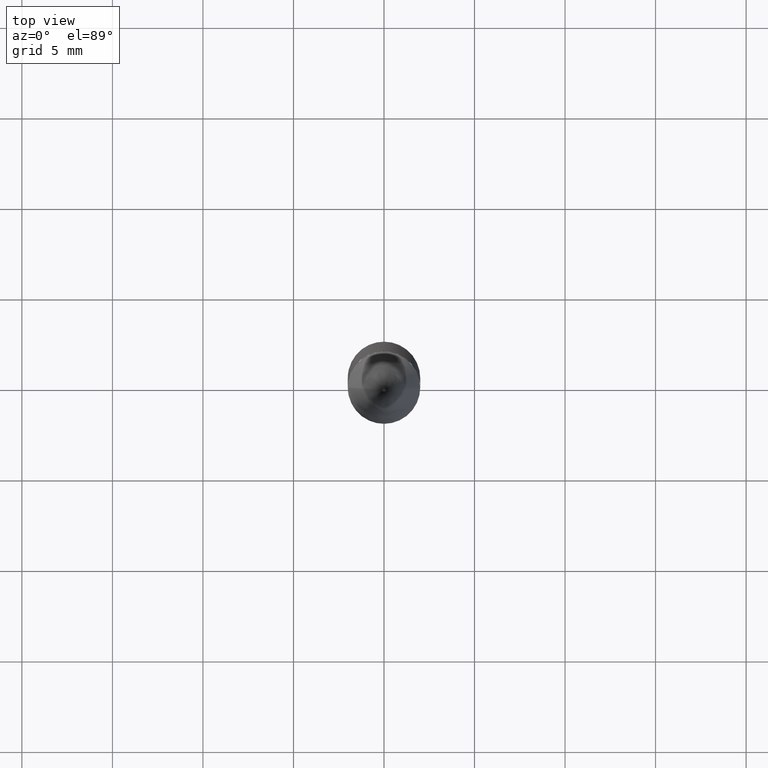
[diagram: clean part render]
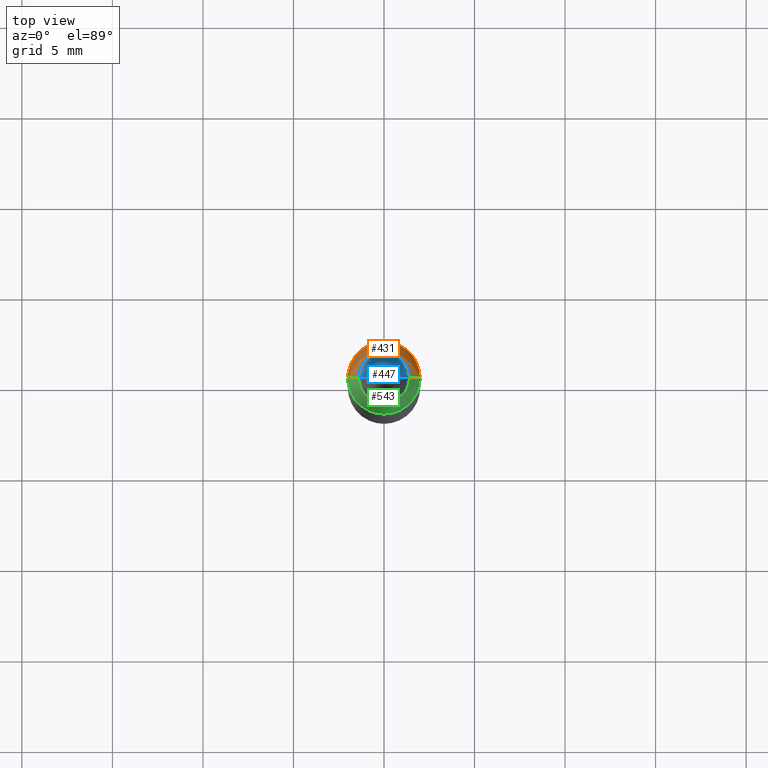
[diagram: same view with three faces highlighted in distinct colors, each labeled with its STEP entity id]
A machine part, top view with three faces highlighted in distinct colors.
Their STEP definitions:

[orange] entity #431 — the highlighted face is a freeform B-spline surface patch.
#200=CARTESIAN_POINT('',(2.0,0.0,30.81));
#201=CARTESIAN_POINT('',(2.0,2.0,30.81));
#202=CARTESIAN_POINT('',(0.0,2.0,30.81));
#203=CARTESIAN_POINT('',(-2.0,2.0,30.81));
#204=CARTESIAN_POINT('',(-2.0,0.0,30.81));
#205=CARTESIAN_POINT('',(1.4,0.0,31.41));
#206=CARTESIAN_POINT('',(1.4,1.4,31.41));
#207=CARTESIAN_POINT('',(0.0,1.4,31.41));
#208=CARTESIAN_POINT('',(-1.4,1.4,31.41));
#209=CARTESIAN_POINT('',(-1.4,0.0,31.41));
#412=(
BOUNDED_SURFACE()
B_SPLINE_SURFACE(1,2,(
(#200,#201,#202,#203,#204),
(#205,#206,#207,#208,#209)
), .UNSPECIFIED.,.F.,.F.,.F.)
B_SPLINE_SURFACE_WITH_KNOTS((2,2),(3,2,3),(
0.0,1.0),(
0.0,0.5,1.0), .UNSPECIFIED.)
GEOMETRIC_REPRESENTATION_ITEM()
RATIONAL_B_SPLINE_SURFACE(((1.0,0.707106781187,1.0,0.707106781187,1.0),
(1.0,0.707106781187,1.0,0.707106781187,1.0)
))
REPRESENTATION_ITEM('')
SURFACE()
);
#413=(
BOUNDED_CURVE()
B_SPLINE_CURVE(1,(#205,#200),.UNSPECIFIED.,.F.,.F.)
B_SPLINE_CURVE_WITH_KNOTS((2,2),
(0.0,1.0),.UNSPECIFIED.)
CURVE()
GEOMETRIC_REPRESENTATION_ITEM()
RATIONAL_B_SPLINE_CURVE((1.0,1.0))
REPRESENTATION_ITEM('')
);
#414=(
BOUNDED_CURVE()
B_SPLINE_CURVE(2,(#200,#201,#202,#203,#204),.UNSPECIFIED.,.F.,.F.)
B_SPLINE_CURVE_WITH_KNOTS((3,2,3),
(0.0,0.5,1.0),.UNSPECIFIED.)
CURVE()
GEOMETRIC_REPRESENTATION_ITEM()
RATIONAL_B_SPLINE_CURVE((1.0,0.707106781187,1.0,0.707106781187,1.0))
REPRESENTATION_ITEM('')
);
#415=(
BOUNDED_CURVE()
B_SPLINE_CURVE(1,(#204,#209),.UNSPECIFIED.,.F.,.F.)
B_SPLINE_CURVE_WITH_KNOTS((2,2),
(0.0,1.0),.UNSPECIFIED.)
CURVE()
GEOMETRIC_REPRESENTATION_ITEM()
RATIONAL_B_SPLINE_CURVE((1.0,1.0))
REPRESENTATION_ITEM('')
);
#416=(
BOUNDED_CURVE()
B_SPLINE_CURVE(2,(#209,#208,#207,#206,#205),.UNSPECIFIED.,.F.,.F.)
B_SPLINE_CURVE_WITH_KNOTS((3,2,3),
(0.0,0.5,1.0),.UNSPECIFIED.)
CURVE()
GEOMETRIC_REPRESENTATION_ITEM()
RATIONAL_B_SPLINE_CURVE((1.0,0.707106781187,1.0,0.707106781187,1.0))
REPRESENTATION_ITEM('')
);
#417=VERTEX_POINT('',#200);
#418=VERTEX_POINT('',#204);
#419=VERTEX_POINT('',#205);
#420=VERTEX_POINT('',#209);
#421=EDGE_CURVE('',#419,#417,#413,.T.);
#422=EDGE_CURVE('',#417,#418,#414,.T.);
#423=EDGE_CURVE('',#418,#420,#415,.T.);
#424=EDGE_CURVE('',#420,#419,#416,.T.);
#425=ORIENTED_EDGE('',*,*,#421,.T.);
#426=ORIENTED_EDGE('',*,*,#422,.T.);
#427=ORIENTED_EDGE('',*,*,#423,.T.);
#428=ORIENTED_EDGE('',*,*,#424,.T.);
#429=EDGE_LOOP('',(#425,#426,#427,#428));
#430=FACE_OUTER_BOUND('',#429,.T.);
#431=ADVANCED_FACE('',(#430),#412,.T.);

[blue] entity #447 — the highlighted face is a freeform B-spline surface patch.
#205=CARTESIAN_POINT('',(1.4,0.0,31.41));
#206=CARTESIAN_POINT('',(1.4,1.4,31.41));
#207=CARTESIAN_POINT('',(0.0,1.4,31.41));
#208=CARTESIAN_POINT('',(-1.4,1.4,31.41));
#209=CARTESIAN_POINT('',(-1.4,0.0,31.41));
#210=CARTESIAN_POINT('',(0.0,0.0,31.41));
#432=(
BOUNDED_SURFACE()
B_SPLINE_SURFACE(1,2,(
(#205,#206,#207,#208,#209),
(#210,#210,#210,#210,#210)
), .UNSPECIFIED.,.F.,.F.,.F.)
B_SPLINE_SURFACE_WITH_KNOTS((2,2),(3,2,3),(
0.0,1.0),(
0.0,0.5,1.0), .UNSPECIFIED.)
GEOMETRIC_REPRESENTATION_ITEM()
RATIONAL_B_SPLINE_SURFACE(((1.0,0.707106781187,1.0,0.707106781187,1.0),
(1.0,0.707106781187,1.0,0.707106781187,1.0)
))
REPRESENTATION_ITEM('')
SURFACE()
);
#433=(
BOUNDED_CURVE()
B_SPLINE_CURVE(1,(#210,#205),.UNSPECIFIED.,.F.,.F.)
B_SPLINE_CURVE_WITH_KNOTS((2,2),
(0.0,1.0),.UNSPECIFIED.)
CURVE()
GEOMETRIC_REPRESENTATION_ITEM()
RATIONAL_B_SPLINE_CURVE((1.0,1.0))
REPRESENTATION_ITEM('')
);
#434=(
BOUNDED_CURVE()
B_SPLINE_CURVE(2,(#205,#206,#207,#208,#209),.UNSPECIFIED.,.F.,.F.)
B_SPLINE_CURVE_WITH_KNOTS((3,2,3),
(0.0,0.5,1.0),.UNSPECIFIED.)
CURVE()
GEOMETRIC_REPRESENTATION_ITEM()
RATIONAL_B_SPLINE_CURVE((1.0,0.707106781187,1.0,0.707106781187,1.0))
REPRESENTATION_ITEM('')
);
#435=(
BOUNDED_CURVE()
B_SPLINE_CURVE(1,(#209,#210),.UNSPECIFIED.,.F.,.F.)
B_SPLINE_CURVE_WITH_KNOTS((2,2),
(0.0,1.0),.UNSPECIFIED.)
CURVE()
GEOMETRIC_REPRESENTATION_ITEM()
RATIONAL_B_SPLINE_CURVE((1.0,1.0))
REPRESENTATION_ITEM('')
);
#436=VERTEX_POINT('',#205);
#437=VERTEX_POINT('',#209);
#438=VERTEX_POINT('',#210);
#439=EDGE_CURVE('',#438,#436,#433,.T.);
#440=EDGE_CURVE('',#436,#437,#434,.T.);
#441=EDGE_CURVE('',#437,#438,#435,.T.);
#442=ORIENTED_EDGE('',*,*,#439,.T.);
#443=ORIENTED_EDGE('',*,*,#440,.T.);
#444=ORIENTED_EDGE('',*,*,#441,.T.);
#445=EDGE_LOOP('',(#442,#443,#444));
#446=FACE_OUTER_BOUND('',#445,.T.);
#447=ADVANCED_FACE('',(#446),#432,.T.);

[green] entity #543 — the highlighted face is a freeform B-spline surface patch.
#200=CARTESIAN_POINT('',(2.0,0.0,30.81));
#204=CARTESIAN_POINT('',(-2.0,0.0,30.81));
#205=CARTESIAN_POINT('',(1.4,0.0,31.41));
#209=CARTESIAN_POINT('',(-1.4,0.0,31.41));
#217=CARTESIAN_POINT('',(-2.0,-2.0,30.81));
#218=CARTESIAN_POINT('',(0.0,-2.0,30.81));
#219=CARTESIAN_POINT('',(2.0,-2.0,30.81));
#220=CARTESIAN_POINT('',(-1.4,-1.4,31.41));
#221=CARTESIAN_POINT('',(0.0,-1.4,31.41));
#222=CARTESIAN_POINT('',(1.4,-1.4,31.41));
#524=(
BOUNDED_SURFACE()
B_SPLINE_SURFACE(1,2,(
(#204,#217,#218,#219,#200),
(#209,#220,#221,#222,#205)
), .UNSPECIFIED.,.F.,.F.,.F.)
B_SPLINE_SURFACE_WITH_KNOTS((2,2),(3,2,3),(
0.0,1.0),(
0.0,0.5,1.0), .UNSPECIFIED.)
GEOMETRIC_REPRESENTATION_ITEM()
RATIONAL_B_SPLINE_SURFACE(((1.0,0.707106781187,1.0,0.707106781187,1.0),
(1.0,0.707106781187,1.0,0.707106781187,1.0)
))
REPRESENTATION_ITEM('')
SURFACE()
);
#525=(
BOUNDED_CURVE()
B_SPLINE_CURVE(2,(#209,#220,#221,#222,#205),.UNSPECIFIED.,.F.,.F.)
B_SPLINE_CURVE_WITH_KNOTS((3,2,3),
(0.0,0.5,1.0),.UNSPECIFIED.)
CURVE()
GEOMETRIC_REPRESENTATION_ITEM()
RATIONAL_B_SPLINE_CURVE((1.0,0.707106781187,1.0,0.707106781187,1.0))
REPRESENTATION_ITEM('')
);
#526=(
BOUNDED_CURVE()
B_SPLINE_CURVE(1,(#205,#200),.UNSPECIFIED.,.F.,.F.)
B_SPLINE_CURVE_WITH_KNOTS((2,2),
(0.0,1.0),.UNSPECIFIED.)
CURVE()
GEOMETRIC_REPRESENTATION_ITEM()
RATIONAL_B_SPLINE_CURVE((1.0,1.0))
REPRESENTATION_ITEM('')
);
#527=(
BOUNDED_CURVE()
B_SPLINE_CURVE(2,(#200,#219,#218,#217,#204),.UNSPECIFIED.,.F.,.F.)
B_SPLINE_CURVE_WITH_KNOTS((3,2,3),
(0.0,0.5,1.0),.UNSPECIFIED.)
CURVE()
GEOMETRIC_REPRESENTATION_ITEM()
RATIONAL_B_SPLINE_CURVE((1.0,0.707106781187,1.0,0.707106781187,1.0))
REPRESENTATION_ITEM('')
);
#528=(
BOUNDED_CURVE()
B_SPLINE_CURVE(1,(#204,#209),.UNSPECIFIED.,.F.,.F.)
B_SPLINE_CURVE_WITH_KNOTS((2,2),
(0.0,1.0),.UNSPECIFIED.)
CURVE()
GEOMETRIC_REPRESENTATION_ITEM()
RATIONAL_B_SPLINE_CURVE((1.0,1.0))
REPRESENTATION_ITEM('')
);
#529=VERTEX_POINT('',#200);
#530=VERTEX_POINT('',#204);
#531=VERTEX_POINT('',#205);
#532=VERTEX_POINT('',#209);
#533=EDGE_CURVE('',#532,#531,#525,.T.);
#534=EDGE_CURVE('',#531,#529,#526,.T.);
#535=EDGE_CURVE('',#529,#530,#527,.T.);
#536=EDGE_CURVE('',#530,#532,#528,.T.);
#537=ORIENTED_EDGE('',*,*,#533,.T.);
#538=ORIENTED_EDGE('',*,*,#534,.T.);
#539=ORIENTED_EDGE('',*,*,#535,.T.);
#540=ORIENTED_EDGE('',*,*,#536,.T.);
#541=EDGE_LOOP('',(#537,#538,#539,#540));
#542=FACE_OUTER_BOUND('',#541,.T.);
#543=ADVANCED_FACE('',(#542),#524,.T.);